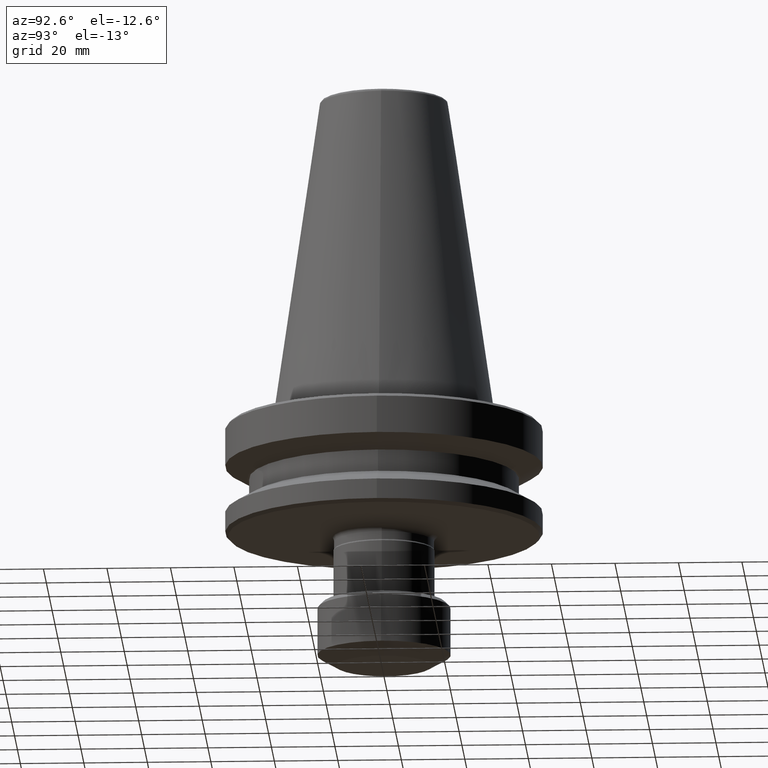
[diagram: clean part render]
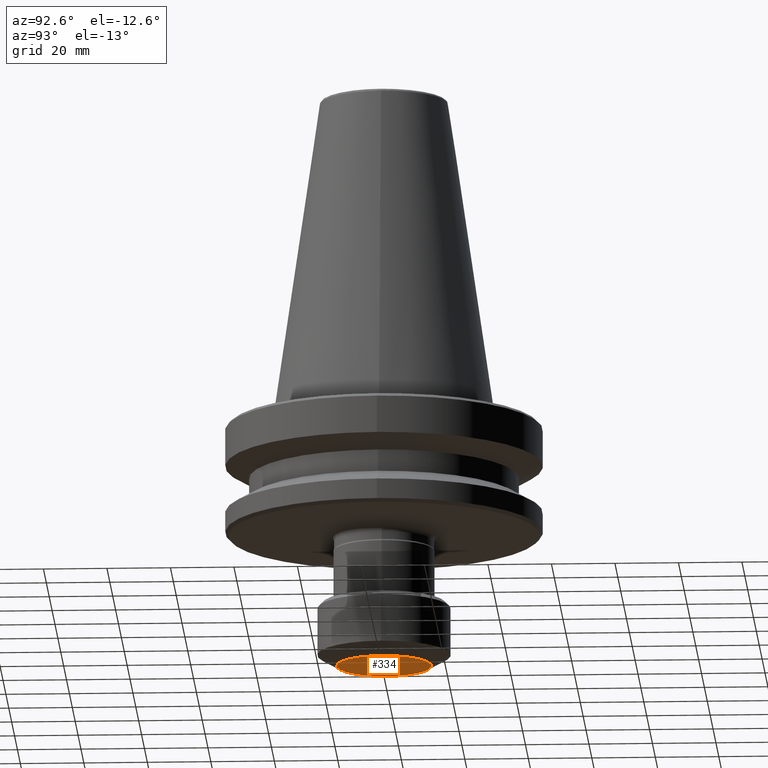
[diagram: same view with one face highlighted and labeled with its STEP entity id]
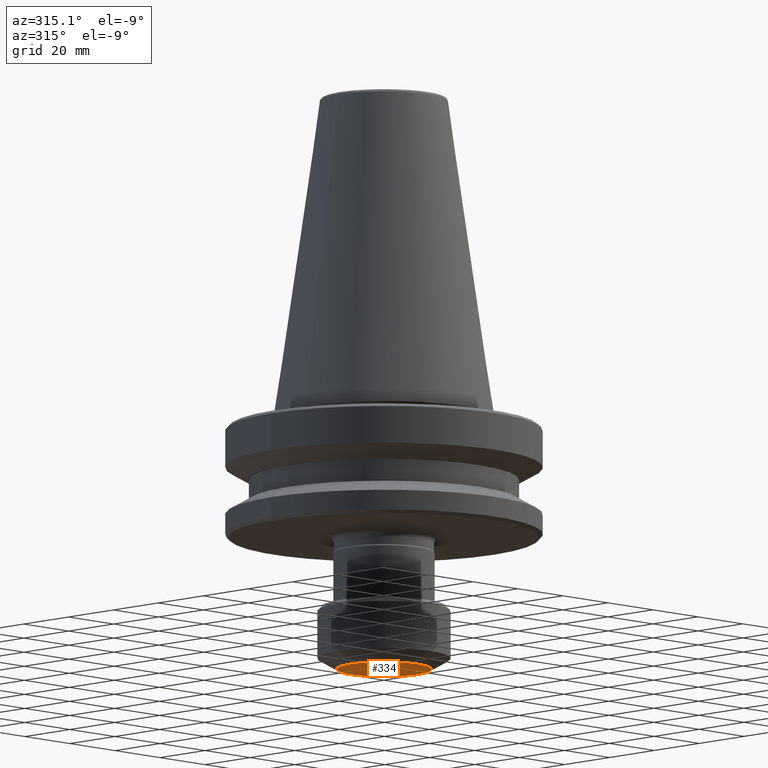
[diagram: same view with one face highlighted and labeled with its STEP entity id]
A machine part, auxiliary view. The second image highlights one B-rep face of the part: STEP entity #334.
A second angle (auxiliary view) of the same face is appended — the face is thin or edge-on in the first view.
In plain terms, the highlighted planar face has unit normal (0, -0, 1).
Its self-contained STEP definition (entity closure, byte-faithful):
#17 = DIRECTION ( 'NONE',  ( 0.0000000000000000000, -0.0000000000000000000, 1.000000000000000000 ) ) ;
#56 = AXIS2_PLACEMENT_3D ( 'NONE', #1060, #17, #700 ) ;
#121 = CARTESIAN_POINT ( 'NONE',  ( 0.0000000000000000000, 0.0000000000000000000, -79.99625950818911200 ) ) ;
#124 = VERTEX_POINT ( 'NONE', #1000 ) ;
#153 = ORIENTED_EDGE ( 'NONE', *, *, #975, .F. ) ;
#167 = AXIS2_PLACEMENT_3D ( 'NONE', #835, #261, #927 ) ;
#225 = DIRECTION ( 'NONE',  ( 1.000000000000000000, 0.0000000000000000000, 0.0000000000000000000 ) ) ;
#255 = CIRCLE ( 'NONE', #167, 15.00000000000000000 ) ;
#261 = DIRECTION ( 'NONE',  ( -0.0000000000000000000, -0.0000000000000000000, 1.000000000000000000 ) ) ;
#334 = ADVANCED_FACE ( 'NONE', ( #853 ), #722, .F. ) ;
#439 = ORIENTED_EDGE ( 'NONE', *, *, #1207, .F. ) ;
#527 = CIRCLE ( 'NONE', #536, 15.00000000000000000 ) ;
#536 = AXIS2_PLACEMENT_3D ( 'NONE', #121, #799, #225 ) ;
#695 = CARTESIAN_POINT ( 'NONE',  ( 15.00000000000000000, 0.0000000000000000000, -79.99625950818911200 ) ) ;
#700 = DIRECTION ( 'NONE',  ( 1.000000000000000000, 0.0000000000000000000, 0.0000000000000000000 ) ) ;
#722 = PLANE ( 'NONE',  #56 ) ;
#799 = DIRECTION ( 'NONE',  ( -0.0000000000000000000, -0.0000000000000000000, 1.000000000000000000 ) ) ;
#835 = CARTESIAN_POINT ( 'NONE',  ( 0.0000000000000000000, 0.0000000000000000000, -79.99625950818911200 ) ) ;
#836 = EDGE_LOOP ( 'NONE', ( #153, #439 ) ) ;
#853 = FACE_OUTER_BOUND ( 'NONE', #836, .T. ) ;
#927 = DIRECTION ( 'NONE',  ( 1.000000000000000000, 0.0000000000000000000, 0.0000000000000000000 ) ) ;
#956 = VERTEX_POINT ( 'NONE', #695 ) ;
#975 = EDGE_CURVE ( 'NONE', #956, #124, #527, .T. ) ;
#1000 = CARTESIAN_POINT ( 'NONE',  ( -15.00000000000000000, 2.204364238464230800E-015, -79.99625950818911200 ) ) ;
#1060 = CARTESIAN_POINT ( 'NONE',  ( 0.0000000000000000000, 0.0000000000000000000, -79.99625950818911200 ) ) ;
#1207 = EDGE_CURVE ( 'NONE', #124, #956, #255, .T. ) ;